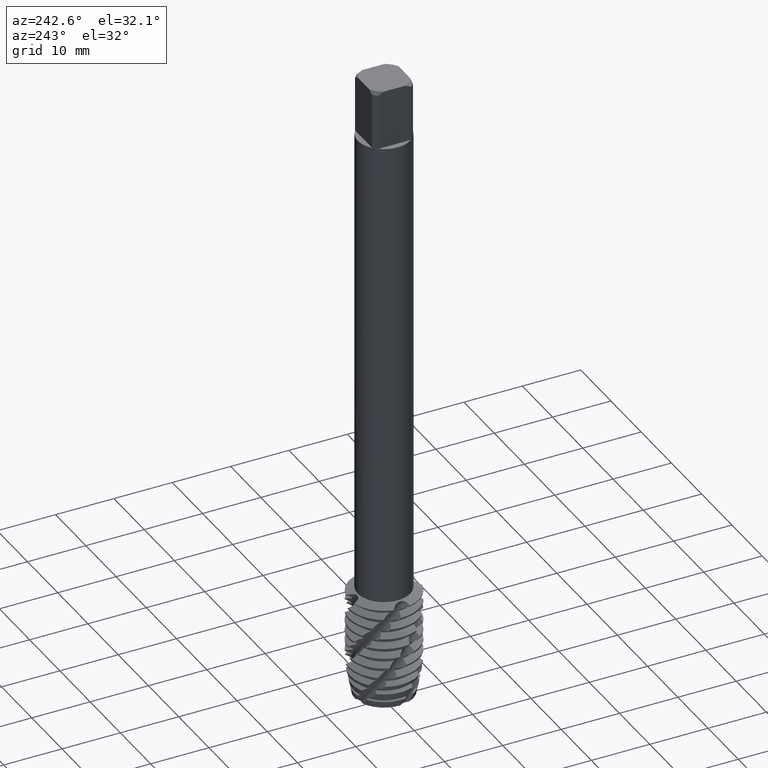
[diagram: clean part render]
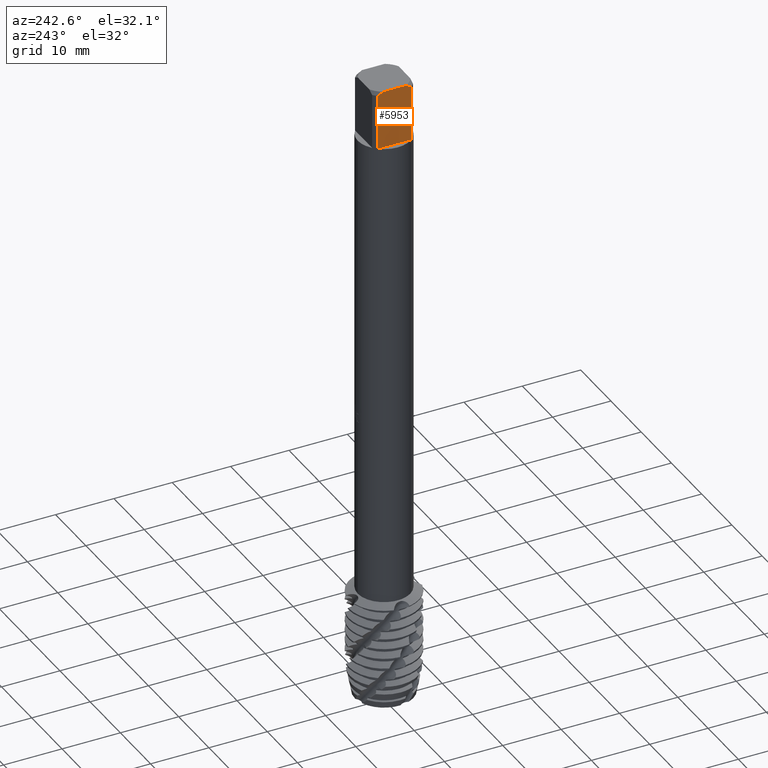
[diagram: same view with one face highlighted and labeled with its STEP entity id]
A machine part, auxiliary view. The second image highlights one B-rep face of the part: STEP entity #5953.
In plain terms, the highlighted planar face has unit normal (-1, 0, 0).
Its self-contained STEP definition (entity closure, byte-faithful):
#2363=EDGE_CURVE('',#2387,#4851,#6594,.T.);
#2381=EDGE_CURVE('',#5407,#4069,#6612,.T.);
#2387=VERTEX_POINT('',#6618);
#3093=EDGE_CURVE('',#3343,#5697,#7381,.T.);
#3223=EDGE_CURVE('',#4069,#2387,#7523,.T.);
#3343=VERTEX_POINT('',#7654);
#4069=VERTEX_POINT('',#8441);
#4243=EDGE_CURVE('',#4851,#3343,#8628,.T.);
#4437=EDGE_CURVE('',#5697,#5407,#8845,.T.);
#4851=VERTEX_POINT('',#9302);
#5407=VERTEX_POINT('',#9901);
#5697=VERTEX_POINT('',#10215);
#5953=ADVANCED_FACE('',(#10491),#10492,.T.);
#6594=(B_SPLINE_CURVE(2,(#12329,#12330,#12331),.UNSPECIFIED.,.F.,.F.)B_SPLINE_CURVE_WITH_KNOTS((3,3),(0.0,1.02290682797908),.UNSPECIFIED.)RATIONAL_B_SPLINE_CURVE((1.0,1.00555141588971,1.0))BOUNDED_CURVE()REPRESENTATION_ITEM('')GEOMETRIC_REPRESENTATION_ITEM()CURVE());
#6612=(B_SPLINE_CURVE(2,(#12373,#12374,#12375),.UNSPECIFIED.,.F.,.F.)B_SPLINE_CURVE_WITH_KNOTS((3,3),(0.0,1.02290682797908),.UNSPECIFIED.)RATIONAL_B_SPLINE_CURVE((1.0,1.00555141588971,1.0))BOUNDED_CURVE()REPRESENTATION_ITEM('')GEOMETRIC_REPRESENTATION_ITEM()CURVE());
#6618=CARTESIAN_POINT('',(-3.5,-1.93649167310371,0.0));
#7381=LINE('',#16032,#16033);
#7523=LINE('',#16519,#16520);
#7654=CARTESIAN_POINT('',(-3.5,-2.82842712474619,-10.0));
#8441=CARTESIAN_POINT('',(-3.5,1.93649167310371,0.0));
#8628=LINE('',#21469,#21470);
#8845=LINE('',#23069,#23070);
#9302=CARTESIAN_POINT('',(-3.5,-2.82842712474619,-0.5));
#9901=CARTESIAN_POINT('',(-3.5,2.82842712474619,-0.5));
#10215=CARTESIAN_POINT('',(-3.5,2.82842712474619,-10.0));
#10491=FACE_OUTER_BOUND('',#31097,.T.);
#10492=PLANE('',#31098);
#12329=CARTESIAN_POINT('',(-3.5,-1.93649167310371,5.55111512312578E-017));
#12330=CARTESIAN_POINT('',(-3.5,-2.3562260032884,-0.203203008829607));
#12331=CARTESIAN_POINT('',(-3.5,-2.82842712474619,-0.5));
#12373=CARTESIAN_POINT('',(-3.5,2.82842712474619,-0.5));
#12374=CARTESIAN_POINT('',(-3.5,2.3562260032884,-0.203203008829607));
#12375=CARTESIAN_POINT('',(-3.5,1.93649167310371,5.55111512312578E-017));
#16032=CARTESIAN_POINT('',(-3.5,0.0,-10.0));
#16033=VECTOR('',#34062,1.0);
#16519=CARTESIAN_POINT('',(-3.5,1.0,0.0));
#16520=VECTOR('',#34196,1.0);
#21469=CARTESIAN_POINT('',(-3.5,-2.82842712474619,-5.25));
#21470=VECTOR('',#35297,1.0);
#23069=CARTESIAN_POINT('',(-3.5,2.82842712474619,-5.25));
#23070=VECTOR('',#35502,1.0);
#31097=EDGE_LOOP('',(#37083,#37084,#37085,#37086,#37087,#37088));
#31098=AXIS2_PLACEMENT_3D('',#37089,#37090,#37091);
#34062=DIRECTION('',(0.0,1.0,0.0));
#34196=DIRECTION('',(-0.0,-1.0,0.0));
#35297=DIRECTION('',(0.0,0.0,-1.0));
#35502=DIRECTION('',(-0.0,-0.0,1.0));
#37083=ORIENTED_EDGE('',*,*,#4437,.F.);
#37084=ORIENTED_EDGE('',*,*,#3093,.F.);
#37085=ORIENTED_EDGE('',*,*,#4243,.F.);
#37086=ORIENTED_EDGE('',*,*,#2363,.F.);
#37087=ORIENTED_EDGE('',*,*,#3223,.F.);
#37088=ORIENTED_EDGE('',*,*,#2381,.F.);
#37089=CARTESIAN_POINT('',(-3.5,0.0,-4.5));
#37090=DIRECTION('',(-1.0,0.0,0.0));
#37091=DIRECTION('',(0.0,0.0,-1.0));